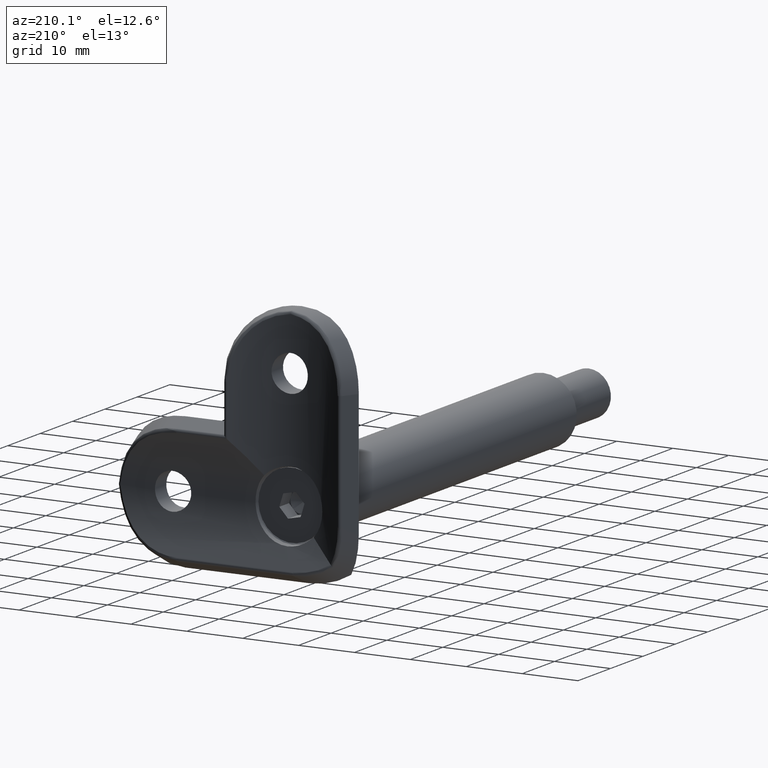
[diagram: clean part render]
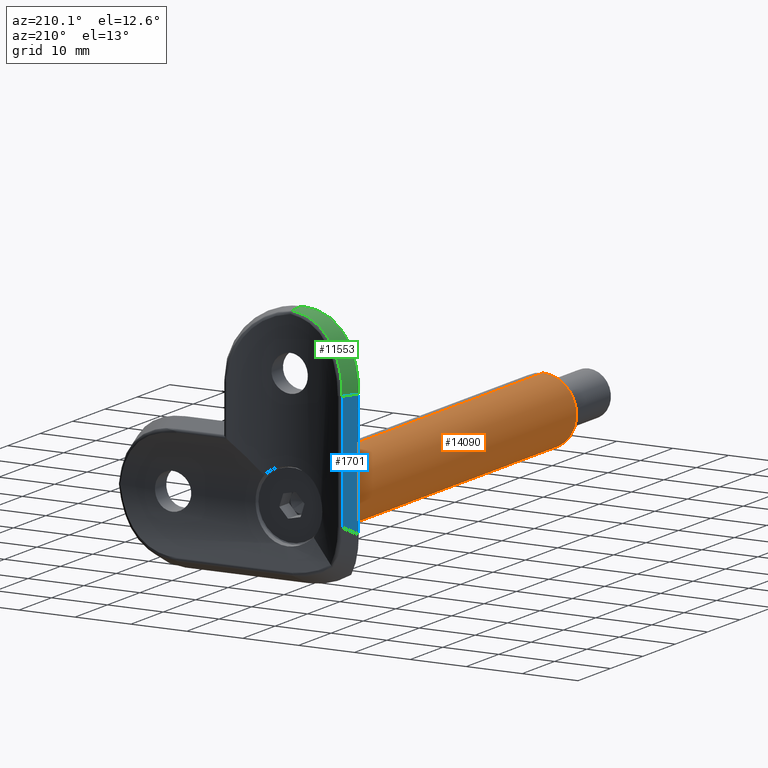
[diagram: same view with three faces highlighted in distinct colors, each labeled with its STEP entity id]
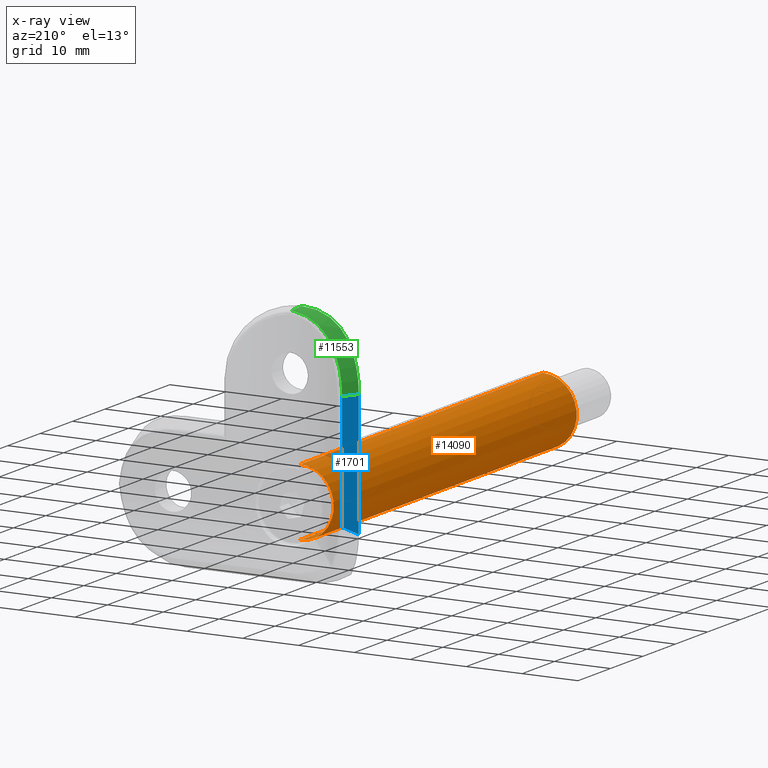
[diagram: x-ray of the same camera — body ghosted, the three highlighted faces saturated]
A machine part, auxiliary view with three faces highlighted in distinct colors.
The next image is the same camera in x-ray (body ghosted, the three faces saturated) — at least one of them is partly hidden behind the body in this view.
Their STEP definitions:

[orange] entity #14090 — the highlighted cylindrical surface (partial cylindrical patch) has radius 6 mm, axis along (-0, -1, -0).
#310 = CARTESIAN_POINT ( 'NONE',  ( 7.347880794884119700E-016, 0.0000000000000000000, 6.000000000000000000 ) ) ;
#884 = EDGE_CURVE ( 'NONE', #7005, #4632, #12444, .T. ) ;
#1067 = CARTESIAN_POINT ( 'NONE',  ( 0.0000000000000000000, 0.0000000000000000000, 0.0000000000000000000 ) ) ;
#1116 = DIRECTION ( 'NONE',  ( 0.0000000000000000000, 0.0000000000000000000, -1.000000000000000000 ) ) ;
#1998 = CARTESIAN_POINT ( 'NONE',  ( 0.0000000000000000000, 74.99999999999998600, 0.0000000000000000000 ) ) ;
#2340 = EDGE_CURVE ( 'NONE', #9985, #6871, #2888, .T. ) ;
#2413 = CYLINDRICAL_SURFACE ( 'NONE', #10476, 6.000000000000000000 ) ;
#2708 = ORIENTED_EDGE ( 'NONE', *, *, #5406, .F. ) ;
#2888 = LINE ( 'NONE', #4239, #5926 ) ;
#2898 = CARTESIAN_POINT ( 'NONE',  ( 0.0000000000000000000, 0.0000000000000000000, 0.0000000000000000000 ) ) ;
#4239 = CARTESIAN_POINT ( 'NONE',  ( 0.0000000000000000000, 0.0000000000000000000, -6.000000000000000000 ) ) ;
#4410 = DIRECTION ( 'NONE',  ( 0.0000000000000000000, 0.0000000000000000000, -1.000000000000000000 ) ) ;
#4632 = VERTEX_POINT ( 'NONE', #11404 ) ;
#5390 = CIRCLE ( 'NONE', #9206, 6.000000000000000000 ) ;
#5406 = EDGE_CURVE ( 'NONE', #4632, #6871, #6622, .T. ) ;
#5926 = VECTOR ( 'NONE', #12511, 1000.000000000000000 ) ;
#6111 = CARTESIAN_POINT ( 'NONE',  ( 0.0000000000000000000, 74.99999999999998600, -6.000000000000000000 ) ) ;
#6622 = CIRCLE ( 'NONE', #9779, 6.000000000000000000 ) ;
#6871 = VERTEX_POINT ( 'NONE', #13428 ) ;
#7005 = VERTEX_POINT ( 'NONE', #8337 ) ;
#7889 = DIRECTION ( 'NONE',  ( -0.0000000000000000000, -1.000000000000000000, -0.0000000000000000000 ) ) ;
#8195 = EDGE_LOOP ( 'NONE', ( #11038, #13548, #8304, #2708 ) ) ;
#8304 = ORIENTED_EDGE ( 'NONE', *, *, #2340, .T. ) ;
#8337 = CARTESIAN_POINT ( 'NONE',  ( 7.347880794884119700E-016, 74.99999999999998600, 6.000000000000000000 ) ) ;
#9206 = AXIS2_PLACEMENT_3D ( 'NONE', #1998, #7889, #4410 ) ;
#9740 = FACE_OUTER_BOUND ( 'NONE', #8195, .T. ) ;
#9779 = AXIS2_PLACEMENT_3D ( 'NONE', #1067, #15373, #1116 ) ;
#9985 = VERTEX_POINT ( 'NONE', #6111 ) ;
#10476 = AXIS2_PLACEMENT_3D ( 'NONE', #2898, #14759, #12341 ) ;
#11038 = ORIENTED_EDGE ( 'NONE', *, *, #884, .F. ) ;
#11404 = CARTESIAN_POINT ( 'NONE',  ( 7.347880794884131600E-016, 0.0000000000000000000, 6.000000000000010700 ) ) ;
#11924 = EDGE_CURVE ( 'NONE', #7005, #9985, #5390, .T. ) ;
#12341 = DIRECTION ( 'NONE',  ( 0.0000000000000000000, 0.0000000000000000000, -1.000000000000000000 ) ) ;
#12444 = LINE ( 'NONE', #310, #15470 ) ;
#12511 = DIRECTION ( 'NONE',  ( -0.0000000000000000000, -1.000000000000000000, -0.0000000000000000000 ) ) ;
#13428 = CARTESIAN_POINT ( 'NONE',  ( 0.0000000000000000000, 0.0000000000000000000, -6.000000000000010700 ) ) ;
#13454 = DIRECTION ( 'NONE',  ( -0.0000000000000000000, -1.000000000000000000, -0.0000000000000000000 ) ) ;
#13548 = ORIENTED_EDGE ( 'NONE', *, *, #11924, .T. ) ;
#14090 = ADVANCED_FACE ( 'NONE', ( #9740 ), #2413, .T. ) ;
#14759 = DIRECTION ( 'NONE',  ( -0.0000000000000000000, -1.000000000000000000, -0.0000000000000000000 ) ) ;
#15373 = DIRECTION ( 'NONE',  ( -0.0000000000000000000, -1.000000000000000000, -0.0000000000000000000 ) ) ;
#15470 = VECTOR ( 'NONE', #13454, 1000.000000000000000 ) ;

[blue] entity #1701 — the highlighted planar face has unit normal (-0.8741, 0.4858, 0).
#61 = DIRECTION ( 'NONE',  ( 0.4858299595141696800, 0.8740533453047704100, -0.0000000000000000000 ) ) ;
#209 = DIRECTION ( 'NONE',  ( -0.4369881450214144200, -0.7861823721131663300, -0.4369881450214160300 ) ) ;
#349 = VERTEX_POINT ( 'NONE', #3706 ) ;
#726 = VECTOR ( 'NONE', #209, 1000.000000000000200 ) ;
#1470 = LINE ( 'NONE', #7074, #7483 ) ;
#1701 = ADVANCED_FACE ( 'NONE', ( #10220 ), #12656, .T. ) ;
#1885 = EDGE_CURVE ( 'NONE', #349, #9795, #15057, .T. ) ;
#2721 = AXIS2_PLACEMENT_3D ( 'NONE', #13869, #15068, #7948 ) ;
#3003 = ORIENTED_EDGE ( 'NONE', *, *, #1885, .T. ) ;
#3706 = CARTESIAN_POINT ( 'NONE',  ( -10.53971119023872100, 5.738077944829615100, -11.99999999999999600 ) ) ;
#4797 = CARTESIAN_POINT ( 'NONE',  ( -12.00000000000000200, 3.110882370972168700, -55.78043083657509300 ) ) ;
#5989 = CARTESIAN_POINT ( 'NONE',  ( -12.00000000000000200, 3.110882370972168700, -34.25946654695231100 ) ) ;
#6313 = VECTOR ( 'NONE', #13806, 1000.000000000000000 ) ;
#7074 = CARTESIAN_POINT ( 'NONE',  ( -12.00000000000000200, 3.110882370972168700, -11.99999999999999600 ) ) ;
#7075 = VERTEX_POINT ( 'NONE', #15467 ) ;
#7442 = ORIENTED_EDGE ( 'NONE', *, *, #7542, .T. ) ;
#7483 = VECTOR ( 'NONE', #61, 1000.000000000000000 ) ;
#7495 = EDGE_CURVE ( 'NONE', #7075, #349, #1470, .T. ) ;
#7542 = EDGE_CURVE ( 'NONE', #9795, #10483, #10255, .T. ) ;
#7948 = DIRECTION ( 'NONE',  ( -0.4858299595141696800, -0.8740533453047704100, 0.0000000000000000000 ) ) ;
#8178 = ORIENTED_EDGE ( 'NONE', *, *, #12571, .T. ) ;
#8268 = DIRECTION ( 'NONE',  ( -0.0000000000000000000, -0.0000000000000000000, 1.000000000000000000 ) ) ;
#9722 = CARTESIAN_POINT ( 'NONE',  ( -13.66908037136001800, 0.1080513318394299100, -35.92854691831232800 ) ) ;
#9795 = VERTEX_POINT ( 'NONE', #10800 ) ;
#10220 = FACE_OUTER_BOUND ( 'NONE', #13480, .T. ) ;
#10255 = LINE ( 'NONE', #9722, #726 ) ;
#10483 = VERTEX_POINT ( 'NONE', #5989 ) ;
#10657 = ORIENTED_EDGE ( 'NONE', *, *, #7495, .T. ) ;
#10800 = CARTESIAN_POINT ( 'NONE',  ( -10.53971119023872100, 5.738077944829615100, -32.79917773719102300 ) ) ;
#12482 = CARTESIAN_POINT ( 'NONE',  ( -10.53971119023872100, 5.738077944829615100, -55.78043083657509300 ) ) ;
#12571 = EDGE_CURVE ( 'NONE', #10483, #7075, #12822, .T. ) ;
#12656 = PLANE ( 'NONE',  #2721 ) ;
#12822 = LINE ( 'NONE', #4797, #15447 ) ;
#13480 = EDGE_LOOP ( 'NONE', ( #10657, #3003, #7442, #8178 ) ) ;
#13806 = DIRECTION ( 'NONE',  ( -0.0000000000000000000, -0.0000000000000000000, -1.000000000000000000 ) ) ;
#13869 = CARTESIAN_POINT ( 'NONE',  ( -12.00000000000000200, 3.110882370972168700, -55.78043083657509300 ) ) ;
#15057 = LINE ( 'NONE', #12482, #6313 ) ;
#15068 = DIRECTION ( 'NONE',  ( -0.8740533453047704100, 0.4858299595141696800, 0.0000000000000000000 ) ) ;
#15447 = VECTOR ( 'NONE', #8268, 1000.000000000000000 ) ;
#15467 = CARTESIAN_POINT ( 'NONE',  ( -12.00000000000000200, 3.110882370972168700, -12.00000000000001100 ) ) ;

[green] entity #11553 — the highlighted cylindrical surface (partial cylindrical patch) has radius 12 mm, axis along (-0.4858, -0.8741, 0).
#49 = CARTESIAN_POINT ( 'NONE',  ( -10.47855176280993700, 5.705503992355598800, -10.51621551605694500 ) ) ;
#61 = DIRECTION ( 'NONE',  ( 0.4858299595141696800, 0.8740533453047704100, -0.0000000000000000000 ) ) ;
#116 = CARTESIAN_POINT ( 'NONE',  ( -1.613878791505611600, 0.04006260036181758000, -0.06266400013327255700 ) ) ;
#322 = B_SPLINE_CURVE_WITH_KNOTS ( 'NONE', 3,
 ( #4715, #14302, #116, #4812, #3659, #4759, #3554, #8280, #11879, #9585, #11826, #1145, #8328, #10651, #4863, #7130, #2373, #1094, #5874, #13101, #13044, #5936, #2272, #3497 ),
 .UNSPECIFIED., .F., .F.,
 ( 4, 2, 2, 2, 2, 2, 2, 2, 2, 2, 2, 4 ),
 ( 6.946915104578253300E-018, 0.002407596472458002100, 0.003611394708686999700, 0.004815192944915996400, 0.007222789417373989000, 0.008426587653602985200, 0.009630385889831978900, 0.01083418412606097300, 0.01203798236228996500, 0.01444557883474795400, 0.01685317530720593900, 0.01926077177966392700 ),
 .UNSPECIFIED. ) ;
#349 = VERTEX_POINT ( 'NONE', #3706 ) ;
#967 = AXIS2_PLACEMENT_3D ( 'NONE', #4431, #12715, #15228 ) ;
#1051 = EDGE_LOOP ( 'NONE', ( #5290, #15075, #9102, #12084 ) ) ;
#1094 = CARTESIAN_POINT ( 'NONE',  ( -10.51579242464842100, 2.345536508976428600, -5.841346426083059200 ) ) ;
#1145 = CARTESIAN_POINT ( 'NONE',  ( -8.077189355929997200, 1.355795876614972700, -2.803053455792593200 ) ) ;
#1169 = CARTESIAN_POINT ( 'NONE',  ( -9.933564340798486800, 5.429111303165160300, -8.000772883041227200 ) ) ;
#1470 = LINE ( 'NONE', #7074, #7483 ) ;
#2256 = CARTESIAN_POINT ( 'NONE',  ( -7.186626295999055000, 4.283856957897540100, -3.362448454889181500 ) ) ;
#2272 = CARTESIAN_POINT ( 'NONE',  ( -12.00000000000001100, 3.110882370972167800, -11.18630905777611600 ) ) ;
#2373 = CARTESIAN_POINT ( 'NONE',  ( -9.882580253765652900, 2.062021079603172200, -4.841759695302392300 ) ) ;
#2410 = CARTESIAN_POINT ( 'NONE',  ( -4.886493709250093100, 3.627657011764031200, -1.620725087500010100 ) ) ;
#2961 = FACE_OUTER_BOUND ( 'NONE', #1051, .T. ) ;
#3126 = VERTEX_POINT ( 'NONE', #7206 ) ;
#3497 = CARTESIAN_POINT ( 'NONE',  ( -12.00000000000000200, 3.110882370972168700, -12.00000000000001100 ) ) ;
#3531 = CARTESIAN_POINT ( 'NONE',  ( -9.569349463060199000, 5.252852787617583500, -6.961006417799287000 ) ) ;
#3554 = CARTESIAN_POINT ( 'NONE',  ( -4.345683333910679700, 0.3823556095641024200, -0.6741302034044447400 ) ) ;
#3659 = CARTESIAN_POINT ( 'NONE',  ( -3.186978305075541600, 0.2033366698453250300, -0.3455975024488560600 ) ) ;
#3706 = CARTESIAN_POINT ( 'NONE',  ( -10.53971119023872100, 5.738077944829615100, -11.99999999999999600 ) ) ;
#4018 = EDGE_CURVE ( 'NONE', #3126, #7075, #322, .T. ) ;
#4431 = CARTESIAN_POINT ( 'NONE',  ( 10.48864014365723400, 18.87004048582996400, -12.00000000000000000 ) ) ;
#4715 = CARTESIAN_POINT ( 'NONE',  ( 3.601072036221082900E-015, 0.0000000000000000000, 0.0000000000000000000 ) ) ;
#4759 = CARTESIAN_POINT ( 'NONE',  ( -3.961919930534439700, 0.3166750525692066400, -0.5516975765523892700 ) ) ;
#4789 = CARTESIAN_POINT ( 'NONE',  ( -1.835189502875483000, 3.128854244805331600, -0.4086525274435553500 ) ) ;
#4812 = CARTESIAN_POINT ( 'NONE',  ( -2.796109589762979300, 0.1555800539313627600, -0.2616770287915699500 ) ) ;
#4863 = CARTESIAN_POINT ( 'NONE',  ( -9.168815601873280500, 1.763311991171653700, -3.908527422935200900 ) ) ;
#5075 = CARTESIAN_POINT ( 'NONE',  ( 7.740312969005719500E-016, 3.029863760737441200, -0.09062469495984236400 ) ) ;
#5122 = CARTESIAN_POINT ( 'NONE',  ( 1.990810050499842500E-015, 1.013143238464493200, -7.915426344007230100E-017 ) ) ;
#5259 = CARTESIAN_POINT ( 'NONE',  ( 7.740312969005719500E-016, 3.029863760737441200, -0.09062469495984236400 ) ) ;
#5290 = ORIENTED_EDGE ( 'NONE', *, *, #14051, .T. ) ;
#5734 = VERTEX_POINT ( 'NONE', #5259 ) ;
#5874 = CARTESIAN_POINT ( 'NONE',  ( -10.86486654361806700, 2.515664035498100600, -6.544945805137766500 ) ) ;
#5910 = CARTESIAN_POINT ( 'NONE',  ( -8.538757616669149900, 4.798744972214018700, -5.057252207604880000 ) ) ;
#5936 = CARTESIAN_POINT ( 'NONE',  ( -11.92859431294146200, 3.070745266762976200, -10.38517943298444600 ) ) ;
#5964 = CARTESIAN_POINT ( 'NONE',  ( 7.740312969005719500E-016, 3.029863760737441200, -0.09062469495984236400 ) ) ;
#6015 = CARTESIAN_POINT ( 'NONE',  ( -10.22228452745750400, 5.573518088803374400, -9.069594813358344600 ) ) ;
#6067 = CARTESIAN_POINT ( 'NONE',  ( -4.567942503128783500, 3.555822712916784300, -1.445088305350710900 ) ) ;
#6364 = B_SPLINE_CURVE_WITH_KNOTS ( 'NONE', 3,
 ( #5964, #11855, #9560, #14278, #4789, #13021, #7262, #6067, #2410, #13082, #11761, #11960, #2256, #9507, #13128, #5910, #8308, #10782, #3531, #1169, #10627, #6015, #7061, #49, #15488, #8405 ),
 .UNSPECIFIED., .F., .F.,
 ( 4, 2, 2, 2, 2, 2, 2, 2, 2, 2, 2, 2, 4 ),
 ( 1.789990259249669400E-022, 0.001118234125172538200, 0.002236468250345076400, 0.004472936500690152800, 0.005591170625862689300, 0.006709404751035225700, 0.008945873001380298700, 0.01006410712655283900, 0.01118234125172537500, 0.01341880950207045800, 0.01453704362724299500, 0.01565527775241553100, 0.01789174600276060400 ),
 .UNSPECIFIED. ) ;
#6492 = CARTESIAN_POINT ( 'NONE',  ( 1.380690074930472700E-015, 2.024371838684321500, -0.03024633800936473200 ) ) ;
#7061 = CARTESIAN_POINT ( 'NONE',  ( -10.29759581758889700, 5.612088555418213600, -9.429120123840061000 ) ) ;
#7074 = CARTESIAN_POINT ( 'NONE',  ( -12.00000000000000200, 3.110882370972168700, -11.99999999999999600 ) ) ;
#7075 = VERTEX_POINT ( 'NONE', #15467 ) ;
#7130 = CARTESIAN_POINT ( 'NONE',  ( -9.653965207986148700, 1.963250185691052000, -4.519773782794684000 ) ) ;
#7206 = CARTESIAN_POINT ( 'NONE',  ( 3.601072036221082900E-015, 0.0000000000000000000, 0.0000000000000000000 ) ) ;
#7262 = CARTESIAN_POINT ( 'NONE',  ( -3.589126953104933000, 3.357423306449190700, -0.9650933646263044600 ) ) ;
#7483 = VECTOR ( 'NONE', #61, 1000.000000000000000 ) ;
#7495 = EDGE_CURVE ( 'NONE', #7075, #349, #1470, .T. ) ;
#8280 = CARTESIAN_POINT ( 'NONE',  ( -5.458459083564783000, 0.5988300328312066200, -1.092610491992235500 ) ) ;
#8308 = CARTESIAN_POINT ( 'NONE',  ( -8.732631405510838700, 4.880105572080474000, -5.362076096639771800 ) ) ;
#8328 = CARTESIAN_POINT ( 'NONE',  ( -8.365447555507358900, 1.457922973972720200, -3.064870799292880800 ) ) ;
#8405 = CARTESIAN_POINT ( 'NONE',  ( -10.53971119023872100, 5.738077944829615100, -11.99999999999999600 ) ) ;
#9102 = ORIENTED_EDGE ( 'NONE', *, *, #7495, .F. ) ;
#9129 =( BOUNDED_CURVE ( )  B_SPLINE_CURVE ( 3, ( #13551, #5122, #6492, #5075 ),
 .UNSPECIFIED., .F., .F. ) 
 B_SPLINE_CURVE_WITH_KNOTS ( ( 4, 4 ),
 ( 1.570796326794896800, 1.693772606617628000 ),
 .UNSPECIFIED. ) 
 CURVE ( )  GEOMETRIC_REPRESENTATION_ITEM ( )  RATIONAL_B_SPLINE_CURVE ( ( 1.000000000000000000, 0.9987401332329102200, 0.9987401332329102200, 1.000000000000000000 ) ) 
 REPRESENTATION_ITEM ( '' )  );
#9507 = CARTESIAN_POINT ( 'NONE',  ( -7.894751655761201200, 4.543563230655470500, -4.178045464450052600 ) ) ;
#9560 = CARTESIAN_POINT ( 'NONE',  ( -0.7404109976856224600, 3.050339483887503100, -0.1855537171515400900 ) ) ;
#9585 = CARTESIAN_POINT ( 'NONE',  ( -7.147371149447648600, 1.054226241151264600, -2.076923188638716500 ) ) ;
#10627 = CARTESIAN_POINT ( 'NONE',  ( -10.04062280470158100, 5.482199962630006400, -8.356330321400628600 ) ) ;
#10651 = CARTESIAN_POINT ( 'NONE',  ( -8.911261608662790900, 1.661678146407845800, -3.617607931678462800 ) ) ;
#10782 = CARTESIAN_POINT ( 'NONE',  ( -9.269901498195492800, 5.112828249825275500, -6.301554369428823000 ) ) ;
#11553 = ADVANCED_FACE ( 'NONE', ( #2961 ), #12105, .T. ) ;
#11761 = CARTESIAN_POINT ( 'NONE',  ( -5.807837735107590000, 3.861754889686729500, -2.212511702124244200 ) ) ;
#11826 = CARTESIAN_POINT ( 'NONE',  ( -7.468358965609684900, 1.153950046629631100, -2.309006403154091600 ) ) ;
#11855 = CARTESIAN_POINT ( 'NONE',  ( -0.3717157821171457900, 3.035608346090379300, -0.1311272123468931700 ) ) ;
#11879 = CARTESIAN_POINT ( 'NONE',  ( -6.158843963928779500, 0.7703371306981855500, -1.441698366257638400 ) ) ;
#11960 = CARTESIAN_POINT ( 'NONE',  ( -6.665760389367135600, 4.109824930646257500, -2.871376122158876500 ) ) ;
#12084 = ORIENTED_EDGE ( 'NONE', *, *, #4018, .F. ) ;
#12105 = CYLINDRICAL_SURFACE ( 'NONE', #967, 11.99999999999999800 ) ;
#12715 = DIRECTION ( 'NONE',  ( -0.4858299595141696800, -0.8740533453047704100, 0.0000000000000000000 ) ) ;
#13021 = CARTESIAN_POINT ( 'NONE',  ( -2.905809991406902900, 3.247913975560727400, -0.7074156933659804200 ) ) ;
#13044 = CARTESIAN_POINT ( 'NONE',  ( -11.64506833623742600, 2.916786140645913700, -8.807278930842064900 ) ) ;
#13082 = CARTESIAN_POINT ( 'NONE',  ( -5.507687913038744800, 3.780907073739718800, -2.005107030095854000 ) ) ;
#13101 = CARTESIAN_POINT ( 'NONE',  ( -11.42949741348639000, 2.801217475128177100, -8.024552782364240900 ) ) ;
#13128 = CARTESIAN_POINT ( 'NONE',  ( -8.119630012388045200, 4.630367664769250900, -4.464765193830674100 ) ) ;
#13551 = CARTESIAN_POINT ( 'NONE',  ( 3.601072036221082900E-015, 0.0000000000000000000, 0.0000000000000000000 ) ) ;
#14051 = EDGE_CURVE ( 'NONE', #3126, #5734, #9129, .T. ) ;
#14278 = CARTESIAN_POINT ( 'NONE',  ( -1.471476261503990500, 3.096880770363721300, -0.3241193906004563600 ) ) ;
#14302 = CARTESIAN_POINT ( 'NONE',  ( -0.8129412476029764800, -2.755680521734002000E-015, -1.264902534566427100E-016 ) ) ;
#14607 = EDGE_CURVE ( 'NONE', #5734, #349, #6364, .T. ) ;
#15075 = ORIENTED_EDGE ( 'NONE', *, *, #14607, .T. ) ;
#15228 = DIRECTION ( 'NONE',  ( 0.8740533453047705200, -0.4858299595141696800, 0.0000000000000000000 ) ) ;
#15467 = CARTESIAN_POINT ( 'NONE',  ( -12.00000000000000200, 3.110882370972168700, -12.00000000000001100 ) ) ;
#15488 = CARTESIAN_POINT ( 'NONE',  ( -10.53971119023872300, 5.738077944829617700, -11.25222862351724000 ) ) ;